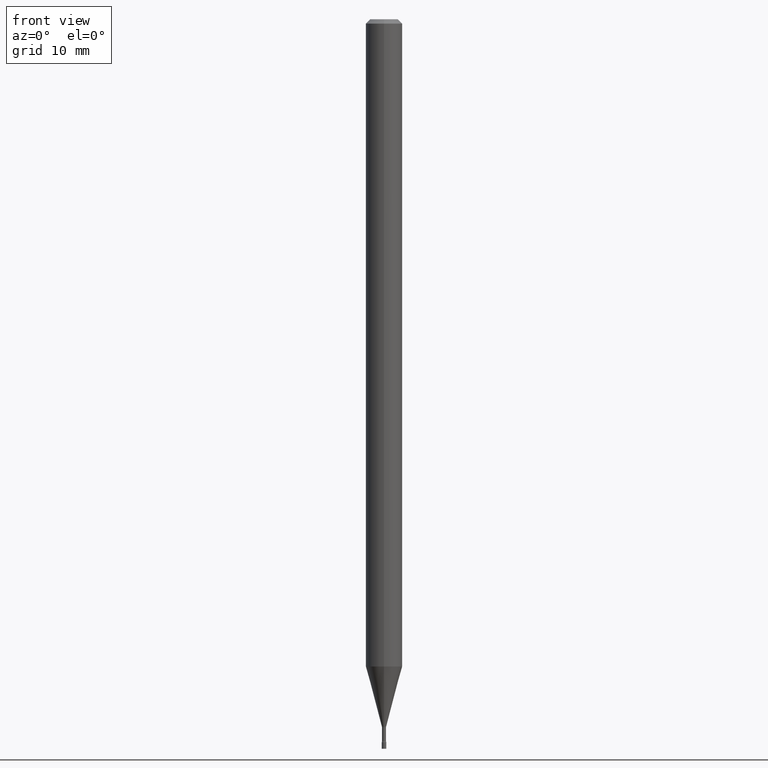
[diagram: clean part render]
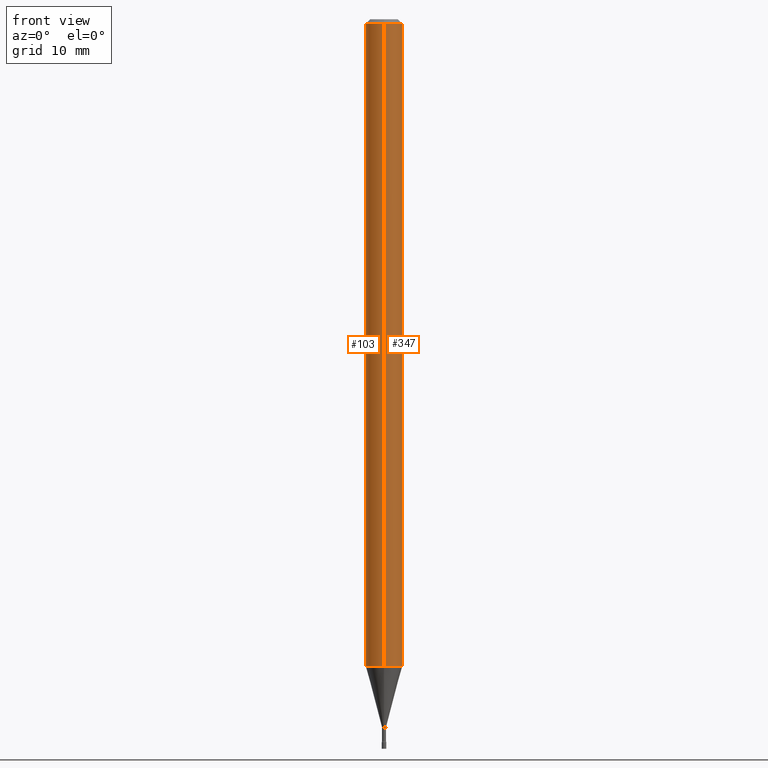
[diagram: same view with one multi-face feature highlighted, each face labeled with its STEP entity id]
A machine part, front view. The highlighted faces form ONE feature: a constant-radius fillet chain: 2 tangent blend faces with common blend radius 1.5875 mm. The faces share edges in the B-rep.
Their STEP definitions:
[1] entity #347 (Cylinder):
#1 = EDGE_CURVE ( 'NONE', #478, #402, #135, .T. ) ;
#40 = CARTESIAN_POINT ( 'NONE',  ( -4.364351673553374845E-16, -0.06250000000000775768, -2.218057782720305848 ) ) ;
#49 = CARTESIAN_POINT ( 'NONE',  ( -4.364351673553912750E-16, -0.06250000000000005551, -0.01499999999999981209 ) ) ;
#63 = CARTESIAN_POINT ( 'NONE',  ( 4.440892098501171462E-16, 0.06249999999999995143, -0.01500000000000024751 ) ) ;
#99 = DIRECTION ( 'NONE',  ( -2.445457239619285156E-29, 3.491497902823772989E-15, 1.000000000000000000 ) ) ;
#100 = AXIS2_PLACEMENT_3D ( 'NONE', #508, #99, #266 ) ;
#106 = CARTESIAN_POINT ( 'NONE',  ( 0.000000000000000000, 0.000000000000000000, 0.000000000000000000 ) ) ;
#130 = CARTESIAN_POINT ( 'NONE',  ( 4.440892098501167517E-16, 0.06249999999999225619, -2.218057782720306292 ) ) ;
#135 = CIRCLE ( 'NONE', #329, 0.06250000000000000000 ) ;
#151 = ORIENTED_EDGE ( 'NONE', *, *, #509, .T. ) ;
#160 = DIRECTION ( 'NONE',  ( -6.982962677686265922E-15, -1.000000000000000000, 3.491497902823772989E-15 ) ) ;
#175 = ORIENTED_EDGE ( 'NONE', *, *, #1, .F. ) ;
#199 = DIRECTION ( 'NONE',  ( -6.982962677686265922E-15, -1.000000000000000000, 3.483106191921935554E-15 ) ) ;
#203 = VECTOR ( 'NONE', #427, 39.37007874015748143 ) ;
#211 = EDGE_CURVE ( 'NONE', #344, #478, #386, .T. ) ;
#228 = EDGE_LOOP ( 'NONE', ( #428, #151, #175, #379 ) ) ;
#244 = DIRECTION ( 'NONE',  ( -2.445457239619285156E-29, 3.491497902823772989E-15, 1.000000000000000000 ) ) ;
#266 = DIRECTION ( 'NONE',  ( -6.982962677686265922E-15, -1.000000000000000000, 4.370956789862821150E-15 ) ) ;
#295 = DIRECTION ( 'NONE',  ( -2.445457239619285437E-29, 3.491497902823772989E-15, 1.000000000000000000 ) ) ;
#300 = CIRCLE ( 'NONE', #100, 0.06250000000000000000 ) ;
#301 = VECTOR ( 'NONE', #295, 39.37007874015748143 ) ;
#311 = FACE_OUTER_BOUND ( 'NONE', #228, .T. ) ;
#314 = EDGE_CURVE ( 'NONE', #344, #515, #300, .T. ) ;
#329 = AXIS2_PLACEMENT_3D ( 'NONE', #357, #244, #199 ) ;
#344 = VERTEX_POINT ( 'NONE', #40 ) ;
#347 = ADVANCED_FACE ( 'NONE', ( #311 ), #356, .T. ) ;
#356 = CYLINDRICAL_SURFACE ( 'NONE', #431, 0.06250000000000000000 ) ;
#357 = CARTESIAN_POINT ( 'NONE',  ( 3.668185859428934758E-31, -5.237246854235670453E-17, -0.01500000000000003067 ) ) ;
#372 = CARTESIAN_POINT ( 'NONE',  ( 4.440892098500625669E-16, 0.06250000000000000000, -2.182186189264858118E-16 ) ) ;
#379 = ORIENTED_EDGE ( 'NONE', *, *, #211, .F. ) ;
#386 = LINE ( 'NONE', #426, #203 ) ;
#400 = DIRECTION ( 'NONE',  ( -2.445457239619285156E-29, 3.491497902823772989E-15, 1.000000000000000000 ) ) ;
#402 = VERTEX_POINT ( 'NONE', #63 ) ;
#426 = CARTESIAN_POINT ( 'NONE',  ( -4.364351673553916201E-16, -0.06250000000000000000, 2.182186189264858118E-16 ) ) ;
#427 = DIRECTION ( 'NONE',  ( -2.445457239619285437E-29, 3.491497902823772989E-15, 1.000000000000000000 ) ) ;
#428 = ORIENTED_EDGE ( 'NONE', *, *, #314, .T. ) ;
#431 = AXIS2_PLACEMENT_3D ( 'NONE', #106, #400, #160 ) ;
#478 = VERTEX_POINT ( 'NONE', #49 ) ;
#486 = LINE ( 'NONE', #372, #301 ) ;
#508 = CARTESIAN_POINT ( 'NONE',  ( 5.424165462647271456E-29, -7.744344096709895441E-15, -2.218057782720305848 ) ) ;
#509 = EDGE_CURVE ( 'NONE', #515, #402, #486, .T. ) ;
#515 = VERTEX_POINT ( 'NONE', #130 ) ;
[2] entity #103 (Cylinder):
#40 = CARTESIAN_POINT ( 'NONE',  ( -4.364351673553374845E-16, -0.06250000000000775768, -2.218057782720305848 ) ) ;
#41 = ORIENTED_EDGE ( 'NONE', *, *, #211, .T. ) ;
#48 = CIRCLE ( 'NONE', #247, 0.06250000000000000000 ) ;
#49 = CARTESIAN_POINT ( 'NONE',  ( -4.364351673553912750E-16, -0.06250000000000005551, -0.01499999999999981209 ) ) ;
#63 = CARTESIAN_POINT ( 'NONE',  ( 4.440892098501171462E-16, 0.06249999999999995143, -0.01500000000000024751 ) ) ;
#74 = DIRECTION ( 'NONE',  ( -6.982962677686265922E-15, -1.000000000000000000, 3.491497902823772989E-15 ) ) ;
#84 = ORIENTED_EDGE ( 'NONE', *, *, #149, .F. ) ;
#96 = CARTESIAN_POINT ( 'NONE',  ( 5.424165462647271456E-29, -7.744344096709895441E-15, -2.218057782720305848 ) ) ;
#103 = ADVANCED_FACE ( 'NONE', ( #480 ), #235, .T. ) ;
#130 = CARTESIAN_POINT ( 'NONE',  ( 4.440892098501167517E-16, 0.06249999999999225619, -2.218057782720306292 ) ) ;
#134 = CARTESIAN_POINT ( 'NONE',  ( 3.668185859428934758E-31, -5.237246854235670453E-17, -0.01500000000000003067 ) ) ;
#138 = DIRECTION ( 'NONE',  ( -2.445457239619285156E-29, 3.491497902823772989E-15, 1.000000000000000000 ) ) ;
#149 = EDGE_CURVE ( 'NONE', #402, #478, #230, .T. ) ;
#161 = EDGE_LOOP ( 'NONE', ( #353, #375, #41, #84 ) ) ;
#194 = EDGE_CURVE ( 'NONE', #515, #344, #48, .T. ) ;
#203 = VECTOR ( 'NONE', #427, 39.37007874015748143 ) ;
#211 = EDGE_CURVE ( 'NONE', #344, #478, #386, .T. ) ;
#217 = DIRECTION ( 'NONE',  ( -6.982962677686265922E-15, -1.000000000000000000, 3.483106191921935554E-15 ) ) ;
#230 = CIRCLE ( 'NONE', #265, 0.06250000000000000000 ) ;
#235 = CYLINDRICAL_SURFACE ( 'NONE', #432, 0.06250000000000000000 ) ;
#247 = AXIS2_PLACEMENT_3D ( 'NONE', #96, #138, #258 ) ;
#258 = DIRECTION ( 'NONE',  ( -6.982962677686265922E-15, -1.000000000000000000, 4.370956789862821150E-15 ) ) ;
#265 = AXIS2_PLACEMENT_3D ( 'NONE', #134, #423, #217 ) ;
#287 = CARTESIAN_POINT ( 'NONE',  ( 0.000000000000000000, 0.000000000000000000, 0.000000000000000000 ) ) ;
#295 = DIRECTION ( 'NONE',  ( -2.445457239619285437E-29, 3.491497902823772989E-15, 1.000000000000000000 ) ) ;
#301 = VECTOR ( 'NONE', #295, 39.37007874015748143 ) ;
#344 = VERTEX_POINT ( 'NONE', #40 ) ;
#353 = ORIENTED_EDGE ( 'NONE', *, *, #509, .F. ) ;
#372 = CARTESIAN_POINT ( 'NONE',  ( 4.440892098500625669E-16, 0.06250000000000000000, -2.182186189264858118E-16 ) ) ;
#375 = ORIENTED_EDGE ( 'NONE', *, *, #194, .T. ) ;
#386 = LINE ( 'NONE', #426, #203 ) ;
#402 = VERTEX_POINT ( 'NONE', #63 ) ;
#423 = DIRECTION ( 'NONE',  ( -2.445457239619285156E-29, 3.491497902823772989E-15, 1.000000000000000000 ) ) ;
#426 = CARTESIAN_POINT ( 'NONE',  ( -4.364351673553916201E-16, -0.06250000000000000000, 2.182186189264858118E-16 ) ) ;
#427 = DIRECTION ( 'NONE',  ( -2.445457239619285437E-29, 3.491497902823772989E-15, 1.000000000000000000 ) ) ;
#432 = AXIS2_PLACEMENT_3D ( 'NONE', #287, #448, #74 ) ;
#448 = DIRECTION ( 'NONE',  ( -2.445457239619285156E-29, 3.491497902823772989E-15, 1.000000000000000000 ) ) ;
#478 = VERTEX_POINT ( 'NONE', #49 ) ;
#480 = FACE_OUTER_BOUND ( 'NONE', #161, .T. ) ;
#486 = LINE ( 'NONE', #372, #301 ) ;
#509 = EDGE_CURVE ( 'NONE', #515, #402, #486, .T. ) ;
#515 = VERTEX_POINT ( 'NONE', #130 ) ;